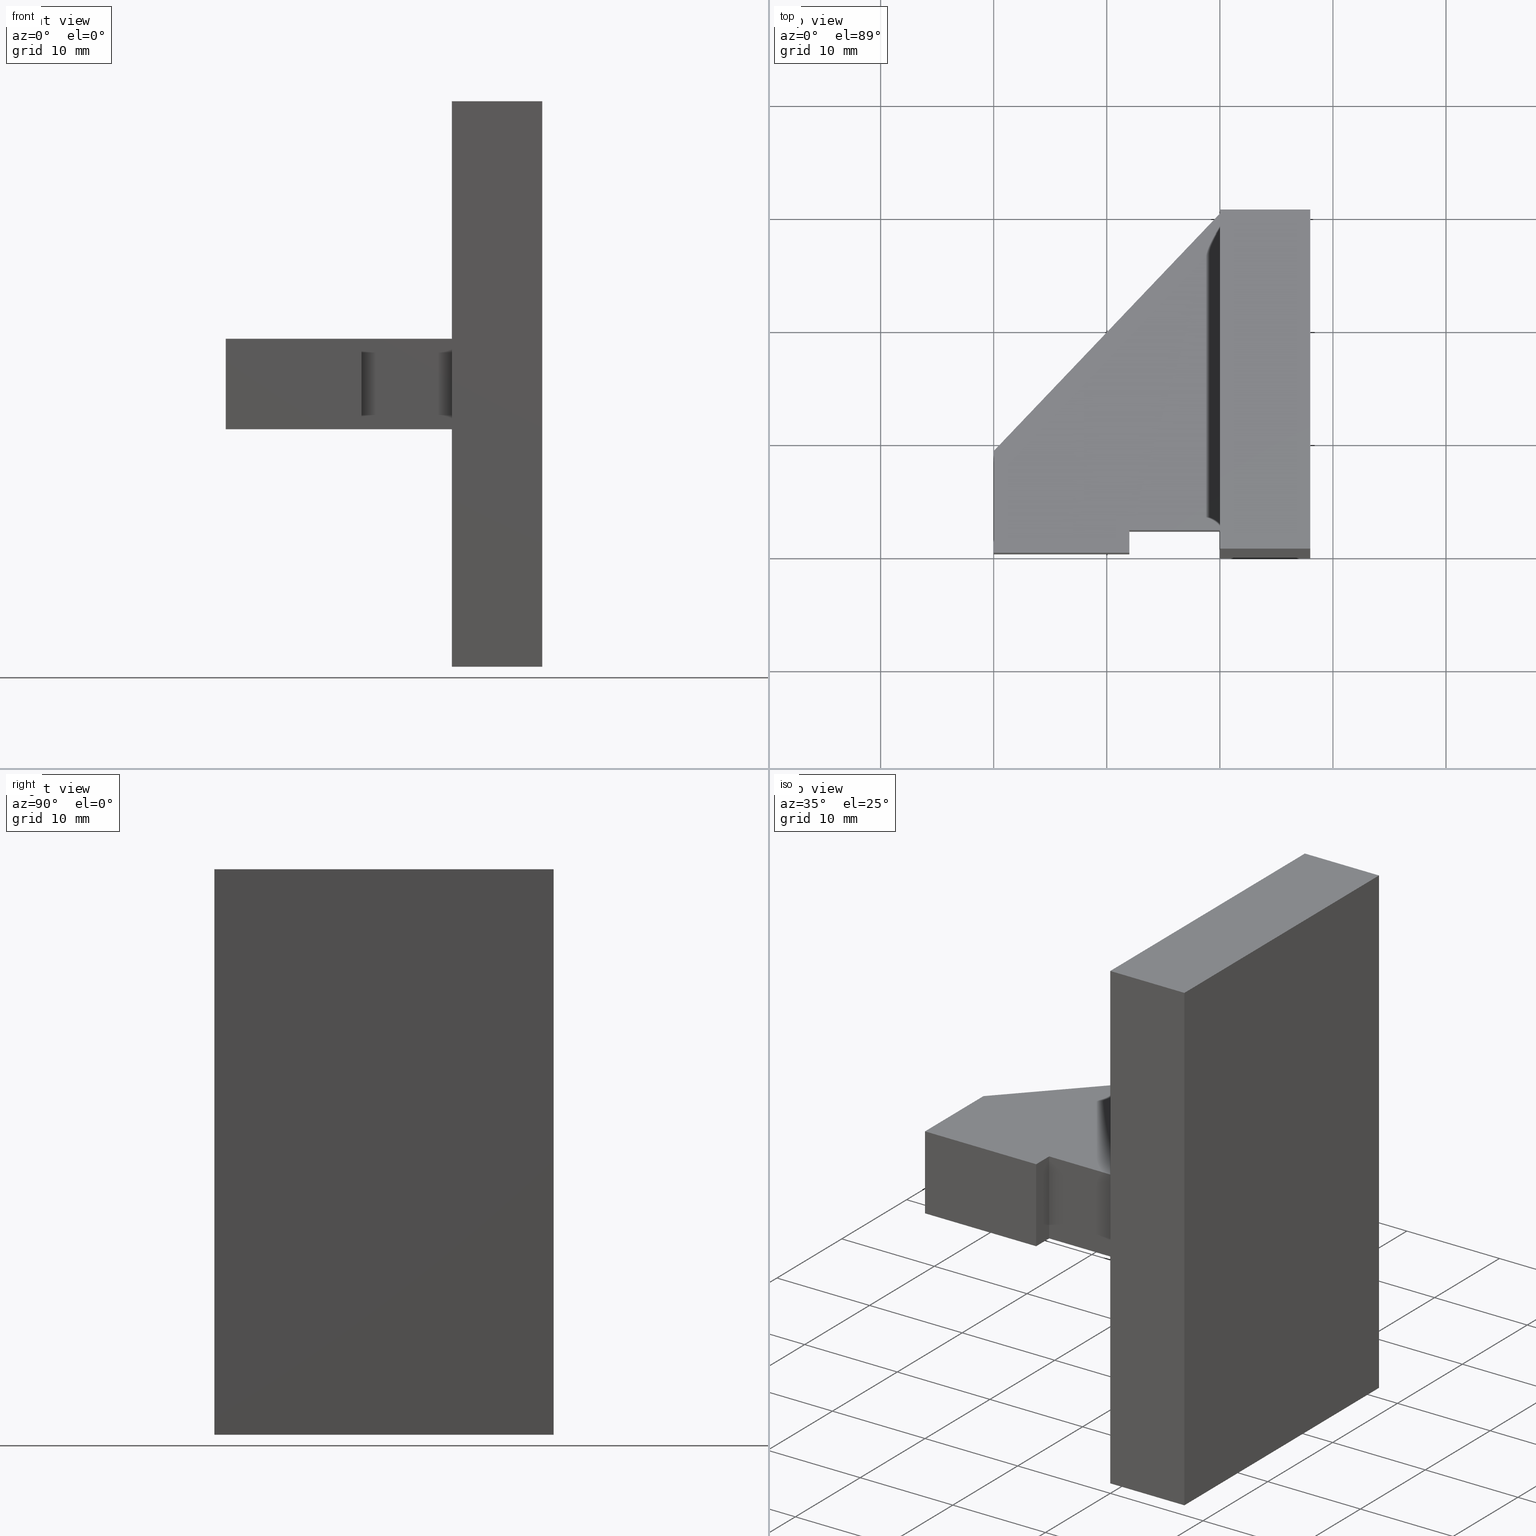
[diagram: canonical four-view strip — front | top / right | iso, engineering-drawing reading convention]
A machine part, canonical four-view strip (front | top / right | iso — engineering-drawing reading convention). The complete STEP part file that produces these views, byte-faithful:
ISO-10303-21;
HEADER;
/* Generated by software containing ST-Developer
 * from STEP Tools, Inc. (www.steptools.com) 
 */

FILE_DESCRIPTION(
/* description */ (''),
/* implementation_level */ '2;1');

FILE_NAME(
/* name */ 'E_3_01_06_08_01_WKZ-0194.stp',
/* time_stamp */ '2025-11-24T13:01:02+01:00',
/* author */ ('d.fischer'),
/* organization */ (''),
/* preprocessor_version */ 'ST-DEVELOPER v20',
/* originating_system */ 'Autodesk Inventor 2025',
/* authorisation */ '');

FILE_SCHEMA (('AUTOMOTIVE_DESIGN { 1 0 10303 214 3 1 1 }'));
ENDSEC;

DATA;
#10=MECHANICAL_DESIGN_GEOMETRIC_PRESENTATION_REPRESENTATION('',(#14,#15,
#16),#407);
#11=SHAPE_REPRESENTATION_RELATIONSHIP('SRR','None',#414,#12);
#12=ADVANCED_BREP_SHAPE_REPRESENTATION('',(#13),#406);
#13=MANIFOLD_SOLID_BREP('Volumenk\X\F6rper1',#244);
#14=STYLED_ITEM('',(#424),#235);
#15=STYLED_ITEM('',(#423),#241);
#16=STYLED_ITEM('',(#423),#13);
#17=FACE_OUTER_BOUND('',#30,.T.);
#18=FACE_OUTER_BOUND('',#31,.T.);
#19=FACE_OUTER_BOUND('',#32,.T.);
#20=FACE_OUTER_BOUND('',#33,.T.);
#21=FACE_OUTER_BOUND('',#34,.T.);
#22=FACE_OUTER_BOUND('',#35,.T.);
#23=FACE_OUTER_BOUND('',#36,.T.);
#24=FACE_OUTER_BOUND('',#37,.T.);
#25=FACE_OUTER_BOUND('',#38,.T.);
#26=FACE_OUTER_BOUND('',#39,.T.);
#27=FACE_OUTER_BOUND('',#40,.T.);
#28=FACE_OUTER_BOUND('',#41,.T.);
#29=FACE_OUTER_BOUND('',#42,.T.);
#30=EDGE_LOOP('',(#156,#157,#158,#159,#160,#161,#162,#163));
#31=EDGE_LOOP('',(#164,#165,#166,#167));
#32=EDGE_LOOP('',(#168,#169,#170,#171,#172,#173));
#33=EDGE_LOOP('',(#174,#175,#176,#177));
#34=EDGE_LOOP('',(#178,#179,#180,#181));
#35=EDGE_LOOP('',(#182,#183,#184,#185));
#36=EDGE_LOOP('',(#186,#187,#188,#189,#190,#191));
#37=EDGE_LOOP('',(#192,#193,#194,#195));
#38=EDGE_LOOP('',(#196,#197,#198,#199));
#39=EDGE_LOOP('',(#200,#201,#202,#203));
#40=EDGE_LOOP('',(#204,#205,#206,#207));
#41=EDGE_LOOP('',(#208,#209,#210,#211));
#42=EDGE_LOOP('',(#212,#213,#214,#215,#216,#217));
#43=LINE('',#343,#74);
#44=LINE('',#345,#75);
#45=LINE('',#347,#76);
#46=LINE('',#349,#77);
#47=LINE('',#351,#78);
#48=LINE('',#353,#79);
#49=LINE('',#355,#80);
#50=LINE('',#356,#81);
#51=LINE('',#360,#82);
#52=LINE('',#361,#83);
#53=LINE('',#362,#84);
#54=LINE('',#365,#85);
#55=LINE('',#366,#86);
#56=LINE('',#367,#87);
#57=LINE('',#370,#88);
#58=LINE('',#371,#89);
#59=LINE('',#373,#90);
#60=LINE('',#378,#91);
#61=LINE('',#380,#92);
#62=LINE('',#381,#93);
#63=LINE('',#383,#94);
#64=LINE('',#384,#95);
#65=LINE('',#387,#96);
#66=LINE('',#388,#97);
#67=LINE('',#391,#98);
#68=LINE('',#392,#99);
#69=LINE('',#395,#100);
#70=LINE('',#396,#101);
#71=LINE('',#399,#102);
#72=LINE('',#400,#103);
#73=LINE('',#402,#104);
#74=VECTOR('',#284,10.);
#75=VECTOR('',#285,10.);
#76=VECTOR('',#286,10.);
#77=VECTOR('',#287,10.);
#78=VECTOR('',#288,10.);
#79=VECTOR('',#289,10.);
#80=VECTOR('',#290,10.);
#81=VECTOR('',#291,10.);
#82=VECTOR('',#294,10.);
#83=VECTOR('',#295,10.);
#84=VECTOR('',#296,10.);
#85=VECTOR('',#299,10.);
#86=VECTOR('',#300,10.);
#87=VECTOR('',#301,10.);
#88=VECTOR('',#304,10.);
#89=VECTOR('',#305,10.);
#90=VECTOR('',#308,10.);
#91=VECTOR('',#313,10.);
#92=VECTOR('',#314,10.);
#93=VECTOR('',#315,10.);
#94=VECTOR('',#316,10.);
#95=VECTOR('',#317,10.);
#96=VECTOR('',#320,10.);
#97=VECTOR('',#321,10.);
#98=VECTOR('',#324,10.);
#99=VECTOR('',#325,10.);
#100=VECTOR('',#328,10.);
#101=VECTOR('',#329,10.);
#102=VECTOR('',#332,10.);
#103=VECTOR('',#333,10.);
#104=VECTOR('',#336,10.);
#105=VERTEX_POINT('',#341);
#106=VERTEX_POINT('',#342);
#107=VERTEX_POINT('',#344);
#108=VERTEX_POINT('',#346);
#109=VERTEX_POINT('',#348);
#110=VERTEX_POINT('',#350);
#111=VERTEX_POINT('',#352);
#112=VERTEX_POINT('',#354);
#113=VERTEX_POINT('',#358);
#114=VERTEX_POINT('',#359);
#115=VERTEX_POINT('',#364);
#116=VERTEX_POINT('',#369);
#117=VERTEX_POINT('',#376);
#118=VERTEX_POINT('',#377);
#119=VERTEX_POINT('',#379);
#120=VERTEX_POINT('',#382);
#121=VERTEX_POINT('',#386);
#122=VERTEX_POINT('',#390);
#123=VERTEX_POINT('',#394);
#124=VERTEX_POINT('',#398);
#125=EDGE_CURVE('',#105,#106,#43,.T.);
#126=EDGE_CURVE('',#106,#107,#44,.T.);
#127=EDGE_CURVE('',#107,#108,#45,.T.);
#128=EDGE_CURVE('',#109,#108,#46,.T.);
#129=EDGE_CURVE('',#110,#109,#47,.T.);
#130=EDGE_CURVE('',#111,#110,#48,.T.);
#131=EDGE_CURVE('',#112,#111,#49,.T.);
#132=EDGE_CURVE('',#105,#112,#50,.T.);
#133=EDGE_CURVE('',#113,#114,#51,.T.);
#134=EDGE_CURVE('',#112,#114,#52,.T.);
#135=EDGE_CURVE('',#111,#113,#53,.T.);
#136=EDGE_CURVE('',#114,#115,#54,.T.);
#137=EDGE_CURVE('',#109,#115,#55,.T.);
#138=EDGE_CURVE('',#105,#108,#56,.T.);
#139=EDGE_CURVE('',#115,#116,#57,.T.);
#140=EDGE_CURVE('',#110,#116,#58,.T.);
#141=EDGE_CURVE('',#116,#113,#59,.T.);
#142=EDGE_CURVE('',#117,#118,#60,.T.);
#143=EDGE_CURVE('',#119,#117,#61,.T.);
#144=EDGE_CURVE('',#108,#119,#62,.T.);
#145=EDGE_CURVE('',#120,#107,#63,.T.);
#146=EDGE_CURVE('',#118,#120,#64,.T.);
#147=EDGE_CURVE('',#121,#105,#65,.T.);
#148=EDGE_CURVE('',#121,#119,#66,.T.);
#149=EDGE_CURVE('',#106,#122,#67,.T.);
#150=EDGE_CURVE('',#122,#120,#68,.T.);
#151=EDGE_CURVE('',#122,#123,#69,.T.);
#152=EDGE_CURVE('',#123,#118,#70,.T.);
#153=EDGE_CURVE('',#123,#124,#71,.T.);
#154=EDGE_CURVE('',#117,#124,#72,.T.);
#155=EDGE_CURVE('',#124,#121,#73,.T.);
#156=ORIENTED_EDGE('',*,*,#125,.T.);
#157=ORIENTED_EDGE('',*,*,#126,.T.);
#158=ORIENTED_EDGE('',*,*,#127,.T.);
#159=ORIENTED_EDGE('',*,*,#128,.F.);
#160=ORIENTED_EDGE('',*,*,#129,.F.);
#161=ORIENTED_EDGE('',*,*,#130,.F.);
#162=ORIENTED_EDGE('',*,*,#131,.F.);
#163=ORIENTED_EDGE('',*,*,#132,.F.);
#164=ORIENTED_EDGE('',*,*,#133,.T.);
#165=ORIENTED_EDGE('',*,*,#134,.F.);
#166=ORIENTED_EDGE('',*,*,#131,.T.);
#167=ORIENTED_EDGE('',*,*,#135,.T.);
#168=ORIENTED_EDGE('',*,*,#136,.T.);
#169=ORIENTED_EDGE('',*,*,#137,.F.);
#170=ORIENTED_EDGE('',*,*,#128,.T.);
#171=ORIENTED_EDGE('',*,*,#138,.F.);
#172=ORIENTED_EDGE('',*,*,#132,.T.);
#173=ORIENTED_EDGE('',*,*,#134,.T.);
#174=ORIENTED_EDGE('',*,*,#139,.T.);
#175=ORIENTED_EDGE('',*,*,#140,.F.);
#176=ORIENTED_EDGE('',*,*,#129,.T.);
#177=ORIENTED_EDGE('',*,*,#137,.T.);
#178=ORIENTED_EDGE('',*,*,#141,.T.);
#179=ORIENTED_EDGE('',*,*,#135,.F.);
#180=ORIENTED_EDGE('',*,*,#130,.T.);
#181=ORIENTED_EDGE('',*,*,#140,.T.);
#182=ORIENTED_EDGE('',*,*,#133,.F.);
#183=ORIENTED_EDGE('',*,*,#141,.F.);
#184=ORIENTED_EDGE('',*,*,#139,.F.);
#185=ORIENTED_EDGE('',*,*,#136,.F.);
#186=ORIENTED_EDGE('',*,*,#142,.F.);
#187=ORIENTED_EDGE('',*,*,#143,.F.);
#188=ORIENTED_EDGE('',*,*,#144,.F.);
#189=ORIENTED_EDGE('',*,*,#127,.F.);
#190=ORIENTED_EDGE('',*,*,#145,.F.);
#191=ORIENTED_EDGE('',*,*,#146,.F.);
#192=ORIENTED_EDGE('',*,*,#147,.T.);
#193=ORIENTED_EDGE('',*,*,#138,.T.);
#194=ORIENTED_EDGE('',*,*,#144,.T.);
#195=ORIENTED_EDGE('',*,*,#148,.F.);
#196=ORIENTED_EDGE('',*,*,#149,.T.);
#197=ORIENTED_EDGE('',*,*,#150,.T.);
#198=ORIENTED_EDGE('',*,*,#145,.T.);
#199=ORIENTED_EDGE('',*,*,#126,.F.);
#200=ORIENTED_EDGE('',*,*,#151,.T.);
#201=ORIENTED_EDGE('',*,*,#152,.T.);
#202=ORIENTED_EDGE('',*,*,#146,.T.);
#203=ORIENTED_EDGE('',*,*,#150,.F.);
#204=ORIENTED_EDGE('',*,*,#153,.T.);
#205=ORIENTED_EDGE('',*,*,#154,.F.);
#206=ORIENTED_EDGE('',*,*,#142,.T.);
#207=ORIENTED_EDGE('',*,*,#152,.F.);
#208=ORIENTED_EDGE('',*,*,#155,.T.);
#209=ORIENTED_EDGE('',*,*,#148,.T.);
#210=ORIENTED_EDGE('',*,*,#143,.T.);
#211=ORIENTED_EDGE('',*,*,#154,.T.);
#212=ORIENTED_EDGE('',*,*,#147,.F.);
#213=ORIENTED_EDGE('',*,*,#155,.F.);
#214=ORIENTED_EDGE('',*,*,#153,.F.);
#215=ORIENTED_EDGE('',*,*,#151,.F.);
#216=ORIENTED_EDGE('',*,*,#149,.F.);
#217=ORIENTED_EDGE('',*,*,#125,.F.);
#218=PLANE('',#267);
#219=PLANE('',#268);
#220=PLANE('',#269);
#221=PLANE('',#270);
#222=PLANE('',#271);
#223=PLANE('',#272);
#224=PLANE('',#273);
#225=PLANE('',#274);
#226=PLANE('',#275);
#227=PLANE('',#276);
#228=PLANE('',#277);
#229=PLANE('',#278);
#230=PLANE('',#279);
#231=ADVANCED_FACE('',(#17),#218,.F.);
#232=ADVANCED_FACE('',(#18),#219,.T.);
#233=ADVANCED_FACE('',(#19),#220,.T.);
#234=ADVANCED_FACE('',(#20),#221,.T.);
#235=ADVANCED_FACE('',(#21),#222,.T.);
#236=ADVANCED_FACE('',(#22),#223,.T.);
#237=ADVANCED_FACE('',(#23),#224,.F.);
#238=ADVANCED_FACE('',(#24),#225,.T.);
#239=ADVANCED_FACE('',(#25),#226,.T.);
#240=ADVANCED_FACE('',(#26),#227,.T.);
#241=ADVANCED_FACE('',(#27),#228,.T.);
#242=ADVANCED_FACE('',(#28),#229,.T.);
#243=ADVANCED_FACE('',(#29),#230,.T.);
#244=CLOSED_SHELL('',(#231,#232,#233,#234,#235,#236,#237,#238,#239,#240,
#241,#242,#243));
#245=DERIVED_UNIT_ELEMENT(#248,1.);
#246=DERIVED_UNIT_ELEMENT(#409,-3.);
#247=DIMENSIONAL_EXPONENTS(0.,1.,0.,0.,0.,0.,0.);
#248=(
CONVERSION_BASED_UNIT('gram',#250)
MASS_UNIT()
NAMED_UNIT(#247)
);
#249=(
MASS_UNIT()
NAMED_UNIT(*)
SI_UNIT(.KILO.,.GRAM.)
);
#250=MASS_MEASURE_WITH_UNIT(MASS_MEASURE(0.001),#249);
#251=DERIVED_UNIT((#245,#246));
#252=MEASURE_REPRESENTATION_ITEM('density measure',
POSITIVE_RATIO_MEASURE(8.03),#251);
#253=PROPERTY_DEFINITION_REPRESENTATION(#258,#255);
#254=PROPERTY_DEFINITION_REPRESENTATION(#259,#256);
#255=REPRESENTATION('material name',(#257),#406);
#256=REPRESENTATION('density',(#252),#406);
#257=DESCRIPTIVE_REPRESENTATION_ITEM('1.4301','1.4301');
#258=PROPERTY_DEFINITION('material property','material name',#416);
#259=PROPERTY_DEFINITION('material property','density of part',#416);
#260=DATE_TIME_ROLE('creation_date');
#261=APPLIED_DATE_AND_TIME_ASSIGNMENT(#262,#260,(#416));
#262=DATE_AND_TIME(#263,#264);
#263=CALENDAR_DATE(2011,10,11);
#264=LOCAL_TIME(0,0,0.,#265);
#265=COORDINATED_UNIVERSAL_TIME_OFFSET(0,0,.BEHIND.);
#266=AXIS2_PLACEMENT_3D('',#339,#280,#281);
#267=AXIS2_PLACEMENT_3D('',#340,#282,#283);
#268=AXIS2_PLACEMENT_3D('',#357,#292,#293);
#269=AXIS2_PLACEMENT_3D('',#363,#297,#298);
#270=AXIS2_PLACEMENT_3D('',#368,#302,#303);
#271=AXIS2_PLACEMENT_3D('',#372,#306,#307);
#272=AXIS2_PLACEMENT_3D('',#374,#309,#310);
#273=AXIS2_PLACEMENT_3D('',#375,#311,#312);
#274=AXIS2_PLACEMENT_3D('',#385,#318,#319);
#275=AXIS2_PLACEMENT_3D('',#389,#322,#323);
#276=AXIS2_PLACEMENT_3D('',#393,#326,#327);
#277=AXIS2_PLACEMENT_3D('',#397,#330,#331);
#278=AXIS2_PLACEMENT_3D('',#401,#334,#335);
#279=AXIS2_PLACEMENT_3D('',#403,#337,#338);
#280=DIRECTION('axis',(0.,0.,1.));
#281=DIRECTION('refdir',(1.,0.,0.));
#282=DIRECTION('center_axis',(1.,3.96508223080413E-16,-1.26570966136207E-32));
#283=DIRECTION('ref_axis',(-1.26570966136207E-32,0.,-1.));
#284=DIRECTION('',(3.96508223080413E-16,-1.,0.));
#285=DIRECTION('',(0.,0.,-1.));
#286=DIRECTION('',(-3.96508223080413E-16,1.,0.));
#287=DIRECTION('',(-3.52170046973666E-32,8.88178419700125E-17,1.));
#288=DIRECTION('',(-3.96508223080413E-16,1.,-1.48029736616688E-16));
#289=DIRECTION('',(0.,0.,-1.));
#290=DIRECTION('',(3.96508223080413E-16,-1.,-1.48029736616688E-16));
#291=DIRECTION('',(-3.52170046973666E-32,8.88178419700125E-17,1.));
#292=DIRECTION('center_axis',(5.86950078289443E-32,-1.48029736616688E-16,
1.));
#293=DIRECTION('ref_axis',(1.,0.,-5.86950078289443E-32));
#294=DIRECTION('',(-3.96508223080413E-16,1.,1.48029736616688E-16));
#295=DIRECTION('',(1.,3.96508223080413E-16,0.));
#296=DIRECTION('',(1.,3.96508223080413E-16,0.));
#297=DIRECTION('center_axis',(-3.96508223080413E-16,1.,-8.88178419700125E-17));
#298=DIRECTION('ref_axis',(0.,8.88178419700125E-17,1.));
#299=DIRECTION('',(3.52170046973666E-32,-8.88178419700125E-17,-1.));
#300=DIRECTION('',(1.,3.96508223080413E-16,0.));
#301=DIRECTION('',(0.,0.,-1.));
#302=DIRECTION('center_axis',(5.86950078289443E-32,-1.48029736616688E-16,
-1.));
#303=DIRECTION('ref_axis',(-1.,0.,-5.86950078289443E-32));
#304=DIRECTION('',(3.96508223080413E-16,-1.,1.48029736616688E-16));
#305=DIRECTION('',(1.,3.96508223080413E-16,0.));
#306=DIRECTION('center_axis',(3.96508223080413E-16,-1.,0.));
#307=DIRECTION('ref_axis',(0.,0.,-1.));
#308=DIRECTION('',(0.,0.,1.));
#309=DIRECTION('center_axis',(1.,3.96508223080413E-16,-1.60631591574854E-32));
#310=DIRECTION('ref_axis',(-1.60631591574854E-32,0.,-1.));
#311=DIRECTION('center_axis',(0.,0.,1.));
#312=DIRECTION('ref_axis',(1.,0.,0.));
#313=DIRECTION('',(1.,4.85722573273506E-16,0.));
#314=DIRECTION('',(2.46716227694479E-16,-1.,0.));
#315=DIRECTION('',(-0.689655172413793,-0.724137931034483,0.));
#316=DIRECTION('',(1.,4.85722573273506E-16,0.));
#317=DIRECTION('',(0.,1.,0.));
#318=DIRECTION('center_axis',(-0.724137931034483,0.689655172413793,0.));
#319=DIRECTION('ref_axis',(0.,0.,1.));
#320=DIRECTION('',(0.689655172413793,0.724137931034483,0.));
#321=DIRECTION('',(0.,0.,-1.));
#322=DIRECTION('center_axis',(4.85722573273506E-16,-1.,0.));
#323=DIRECTION('ref_axis',(0.,0.,-1.));
#324=DIRECTION('',(-1.,-4.85722573273506E-16,0.));
#325=DIRECTION('',(0.,0.,-1.));
#326=DIRECTION('center_axis',(1.,0.,0.));
#327=DIRECTION('ref_axis',(0.,0.,-1.));
#328=DIRECTION('',(0.,-1.,0.));
#329=DIRECTION('',(0.,0.,-1.));
#330=DIRECTION('center_axis',(4.85722573273506E-16,-1.,0.));
#331=DIRECTION('ref_axis',(0.,0.,-1.));
#332=DIRECTION('',(-1.,-4.85722573273506E-16,0.));
#333=DIRECTION('',(0.,0.,1.));
#334=DIRECTION('center_axis',(-1.,-2.46716227694479E-16,0.));
#335=DIRECTION('ref_axis',(0.,0.,1.));
#336=DIRECTION('',(-2.46716227694479E-16,1.,0.));
#337=DIRECTION('center_axis',(0.,0.,1.));
#338=DIRECTION('ref_axis',(1.,0.,0.));
#339=CARTESIAN_POINT('',(0.,0.,0.));
#340=CARTESIAN_POINT('Origin',(-2.93416085079505E-15,15.,5.55111512312578E-16));
#341=CARTESIAN_POINT('',(-8.88178419700125E-15,30.,4.));
#342=CARTESIAN_POINT('',(2.22044604925031E-15,2.00000000000001,4.));
#343=CARTESIAN_POINT('',(-8.88178419700125E-15,30.,4.));
#344=CARTESIAN_POINT('',(2.22044604925031E-15,2.00000000000001,-4.));
#345=CARTESIAN_POINT('',(2.22044604925031E-15,2.00000000000001,0.));
#346=CARTESIAN_POINT('',(-8.88178419700125E-15,30.,-4.));
#347=CARTESIAN_POINT('',(-8.88178419700125E-15,30.,-4.));
#348=CARTESIAN_POINT('',(-8.88178419700125E-15,30.,-25.));
#349=CARTESIAN_POINT('',(-8.88178419700125E-15,30.,-25.));
#350=CARTESIAN_POINT('',(3.01346249541114E-15,8.32667268468867E-16,-25.));
#351=CARTESIAN_POINT('',(3.01346249541114E-15,8.32667268468867E-16,-25.));
#352=CARTESIAN_POINT('',(3.01346249541114E-15,8.32667268468867E-16,25.));
#353=CARTESIAN_POINT('',(3.01346249541114E-15,8.32667268468867E-16,25.));
#354=CARTESIAN_POINT('',(-8.88178419700125E-15,30.,25.));
#355=CARTESIAN_POINT('',(-8.88178419700125E-15,30.,25.));
#356=CARTESIAN_POINT('',(-8.88178419700125E-15,30.,-25.));
#357=CARTESIAN_POINT('Origin',(3.01346249541114E-15,8.32667268468867E-16,
25.));
#358=CARTESIAN_POINT('',(8.,4.00473305311217E-15,25.));
#359=CARTESIAN_POINT('',(7.99999999999999,30.,25.));
#360=CARTESIAN_POINT('',(7.99999999999999,30.,25.));
#361=CARTESIAN_POINT('',(-8.88178419700125E-15,30.,25.));
#362=CARTESIAN_POINT('',(3.01346249541114E-15,8.32667268468867E-16,25.));
#363=CARTESIAN_POINT('Origin',(-8.88178419700125E-15,30.,25.));
#364=CARTESIAN_POINT('',(7.99999999999999,30.,-25.));
#365=CARTESIAN_POINT('',(7.99999999999999,30.,-25.));
#366=CARTESIAN_POINT('',(-8.88178419700125E-15,30.,-25.));
#367=CARTESIAN_POINT('',(-8.88178419700125E-15,30.,0.));
#368=CARTESIAN_POINT('Origin',(-8.88178419700125E-15,30.,-25.));
#369=CARTESIAN_POINT('',(8.,4.00473305311217E-15,-25.));
#370=CARTESIAN_POINT('',(8.,4.00473305311217E-15,-25.));
#371=CARTESIAN_POINT('',(3.01346249541114E-15,8.32667268468867E-16,-25.));
#372=CARTESIAN_POINT('Origin',(3.01346249541114E-15,8.32667268468867E-16,
-25.));
#373=CARTESIAN_POINT('',(8.,4.00473305311217E-15,25.));
#374=CARTESIAN_POINT('Origin',(8.,15.,5.55111512312578E-16));
#375=CARTESIAN_POINT('Origin',(-7.79545454545455,12.1818181818182,-4.));
#376=CARTESIAN_POINT('',(-20.,1.66533453693773E-15,-4.));
#377=CARTESIAN_POINT('',(-8.,7.49400541621981E-15,-4.));
#378=CARTESIAN_POINT('',(-8.,7.49400541621981E-15,-4.));
#379=CARTESIAN_POINT('',(-20.,9.,-4.));
#380=CARTESIAN_POINT('',(-20.,1.66533453693773E-15,-4.));
#381=CARTESIAN_POINT('',(-20.,9.,-4.));
#382=CARTESIAN_POINT('',(-8.,2.00000000000001,-4.));
#383=CARTESIAN_POINT('',(2.22044604925031E-15,2.00000000000001,-4.));
#384=CARTESIAN_POINT('',(-8.,2.00000000000001,-4.));
#385=CARTESIAN_POINT('Origin',(-20.,9.,0.));
#386=CARTESIAN_POINT('',(-20.,9.,4.));
#387=CARTESIAN_POINT('',(-20.,9.,4.));
#388=CARTESIAN_POINT('',(-20.,9.,0.));
#389=CARTESIAN_POINT('Origin',(2.22044604925031E-15,2.00000000000001,0.));
#390=CARTESIAN_POINT('',(-8.,2.00000000000001,4.));
#391=CARTESIAN_POINT('',(2.22044604925031E-15,2.00000000000001,4.));
#392=CARTESIAN_POINT('',(-8.,2.00000000000001,0.));
#393=CARTESIAN_POINT('Origin',(-8.,2.00000000000001,0.));
#394=CARTESIAN_POINT('',(-8.,7.49400541621981E-15,4.));
#395=CARTESIAN_POINT('',(-8.,2.00000000000001,4.));
#396=CARTESIAN_POINT('',(-8.,7.49400541621981E-15,0.));
#397=CARTESIAN_POINT('Origin',(-8.,7.49400541621981E-15,0.));
#398=CARTESIAN_POINT('',(-20.,1.66533453693773E-15,4.));
#399=CARTESIAN_POINT('',(-8.,7.49400541621981E-15,4.));
#400=CARTESIAN_POINT('',(-20.,1.66533453693773E-15,0.));
#401=CARTESIAN_POINT('Origin',(-20.,1.66533453693773E-15,0.));
#402=CARTESIAN_POINT('',(-20.,1.66533453693773E-15,4.));
#403=CARTESIAN_POINT('Origin',(-7.79545454545455,12.1818181818182,4.));
#404=UNCERTAINTY_MEASURE_WITH_UNIT(LENGTH_MEASURE(0.01),#408,
'DISTANCE_ACCURACY_VALUE',
'Maximum model space distance between geometric entities at asserted c
onnectivities');
#405=UNCERTAINTY_MEASURE_WITH_UNIT(LENGTH_MEASURE(0.01),#408,
'DISTANCE_ACCURACY_VALUE',
'Maximum model space distance between geometric entities at asserted c
onnectivities');
#406=(
GEOMETRIC_REPRESENTATION_CONTEXT(3)
GLOBAL_UNCERTAINTY_ASSIGNED_CONTEXT((#404))
GLOBAL_UNIT_ASSIGNED_CONTEXT((#408,#410,#411))
REPRESENTATION_CONTEXT('','3D')
);
#407=(
GEOMETRIC_REPRESENTATION_CONTEXT(3)
GLOBAL_UNCERTAINTY_ASSIGNED_CONTEXT((#405))
GLOBAL_UNIT_ASSIGNED_CONTEXT((#408,#410,#411))
REPRESENTATION_CONTEXT('','3D')
);
#408=(
LENGTH_UNIT()
NAMED_UNIT(*)
SI_UNIT(.MILLI.,.METRE.)
);
#409=(
LENGTH_UNIT()
NAMED_UNIT(*)
SI_UNIT(.CENTI.,.METRE.)
);
#410=(
NAMED_UNIT(*)
PLANE_ANGLE_UNIT()
SI_UNIT($,.RADIAN.)
);
#411=(
NAMED_UNIT(*)
SI_UNIT($,.STERADIAN.)
SOLID_ANGLE_UNIT()
);
#412=SHAPE_DEFINITION_REPRESENTATION(#413,#414);
#413=PRODUCT_DEFINITION_SHAPE('',$,#416);
#414=SHAPE_REPRESENTATION('',(#266),#406);
#415=PRODUCT_DEFINITION_CONTEXT('part definition',#420,'design');
#416=PRODUCT_DEFINITION('WKZ-0194','E_3_01_06_08_01_WKZ-0194',#417,#415);
#417=PRODUCT_DEFINITION_FORMATION('',$,#422);
#418=PRODUCT_RELATED_PRODUCT_CATEGORY('E_3_01_06_08_01_WKZ-0194',
'E_3_01_06_08_01_WKZ-0194',(#422));
#419=APPLICATION_PROTOCOL_DEFINITION('international standard',
'automotive_design',2009,#420);
#420=APPLICATION_CONTEXT(
'Core Data for Automotive Mechanical Design Process');
#421=PRODUCT_CONTEXT('part definition',#420,'mechanical');
#422=PRODUCT('WKZ-0194','E_3_01_06_08_01_WKZ-0194',$,(#421));
#423=PRESENTATION_STYLE_ASSIGNMENT((#425));
#424=PRESENTATION_STYLE_ASSIGNMENT((#426));
#425=SURFACE_STYLE_USAGE(.BOTH.,#431);
#426=SURFACE_STYLE_USAGE(.BOTH.,#432);
#427=SURFACE_STYLE_RENDERING_WITH_PROPERTIES($,#439,(#429));
#428=SURFACE_STYLE_RENDERING_WITH_PROPERTIES($,#440,(#430));
#429=SURFACE_STYLE_TRANSPARENT(0.);
#430=SURFACE_STYLE_TRANSPARENT(0.);
#431=SURFACE_SIDE_STYLE('',(#433,#427));
#432=SURFACE_SIDE_STYLE('',(#434,#428));
#433=SURFACE_STYLE_FILL_AREA(#435);
#434=SURFACE_STYLE_FILL_AREA(#436);
#435=FILL_AREA_STYLE('',(#437));
#436=FILL_AREA_STYLE('',(#438));
#437=FILL_AREA_STYLE_COLOUR('',#439);
#438=FILL_AREA_STYLE_COLOUR('',#440);
#439=COLOUR_RGB('',0.92156862745098,0.92156862745098,0.92156862745098);
#440=COLOUR_RGB('',0.0392156862745098,0.0392156862745098,0.0392156862745098);
ENDSEC;
END-ISO-10303-21;
